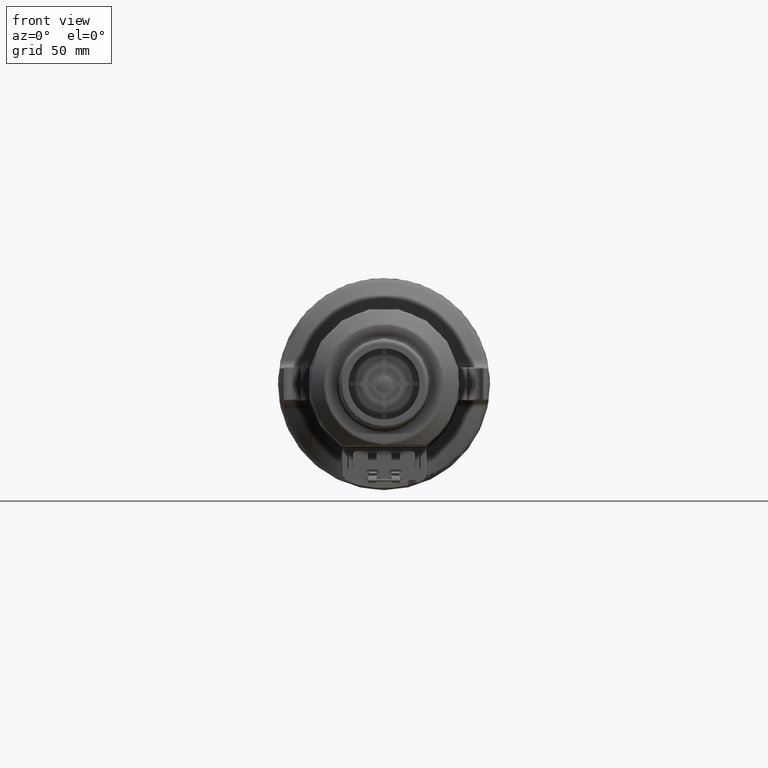
[diagram: clean part render]
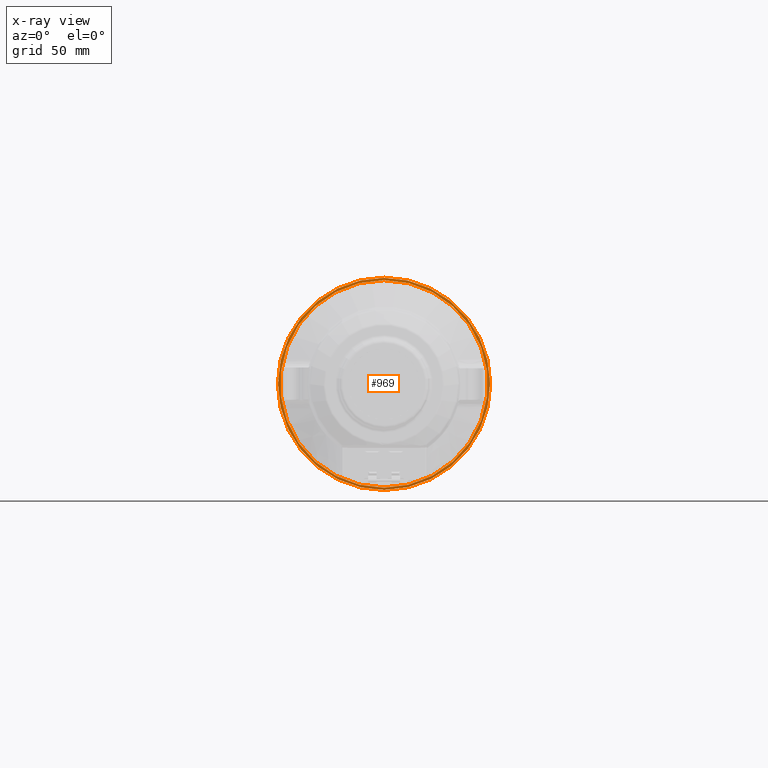
[diagram: x-ray — body ghosted, one internal face saturated and labeled with its STEP entity id]
A machine part, front view, then the same camera in x-ray: the body is ghosted and one INTERNAL B-rep face — a face not visible from any outside direction — is saturated and labeled: STEP entity #969.
In plain terms, the highlighted planar face has unit normal (-0, 1, 0).
Its self-contained STEP definition (entity closure, byte-faithful):
#969 = ADVANCED_FACE( '', ( #2467, #2468 ), #2469, .T. );
#2467 = FACE_OUTER_BOUND( '', #5309, .T. );
#2468 = FACE_BOUND( '', #5310, .T. );
#2469 = PLANE( '', #5311 );
#5309 = EDGE_LOOP( '', ( #11965 ) );
#5310 = EDGE_LOOP( '', ( #11966 ) );
#5311 = AXIS2_PLACEMENT_3D( '', #11967, #11968, #11969 );
#11965 = ORIENTED_EDGE( '', *, *, #17392, .F. );
#11966 = ORIENTED_EDGE( '', *, *, #17393, .T. );
#11967 = CARTESIAN_POINT( '', ( 4.11187991309190E-011, -2.20000000000009, 4.10883912870358E-011 ) );
#11968 = DIRECTION( '', ( -0.000000000000000, 1.00000000000000, 0.000000000000000 ) );
#11969 = DIRECTION( '', ( 1.00000000000000, 0.000000000000000, 0.000000000000000 ) );
#17392 = EDGE_CURVE( '', #20395, #20395, #20396, .T. );
#17393 = EDGE_CURVE( '', #20397, #20397, #20398, .T. );
#20395 = VERTEX_POINT( '', #25125 );
#20396 = CIRCLE( '', #25126, 44.9999999999978 );
#20397 = VERTEX_POINT( '', #25127 );
#20398 = CIRCLE( '', #25128, 44.0000000000018 );
#25125 = CARTESIAN_POINT( '', ( 4.11187991309190E-011, -2.20000000000085, 45.0000000000389 ) );
#25126 = AXIS2_PLACEMENT_3D( '', #30565, #30566, #30567 );
#25127 = CARTESIAN_POINT( '', ( 4.11187991309190E-011, -2.20000000000035, 44.0000000000429 ) );
#25128 = AXIS2_PLACEMENT_3D( '', #30568, #30569, #30570 );
#30565 = CARTESIAN_POINT( '', ( 4.11187991309190E-011, -2.20000000000085, 4.10883912870358E-011 ) );
#30566 = DIRECTION( '', ( 0.000000000000000, -1.00000000000000, 0.000000000000000 ) );
#30567 = DIRECTION( '', ( 0.000000000000000, 0.000000000000000, 1.00000000000000 ) );
#30568 = CARTESIAN_POINT( '', ( 4.11187991309190E-011, -2.20000000000035, 4.10883912870358E-011 ) );
#30569 = DIRECTION( '', ( 0.000000000000000, -1.00000000000000, 0.000000000000000 ) );
#30570 = DIRECTION( '', ( 0.000000000000000, 0.000000000000000, 1.00000000000000 ) );